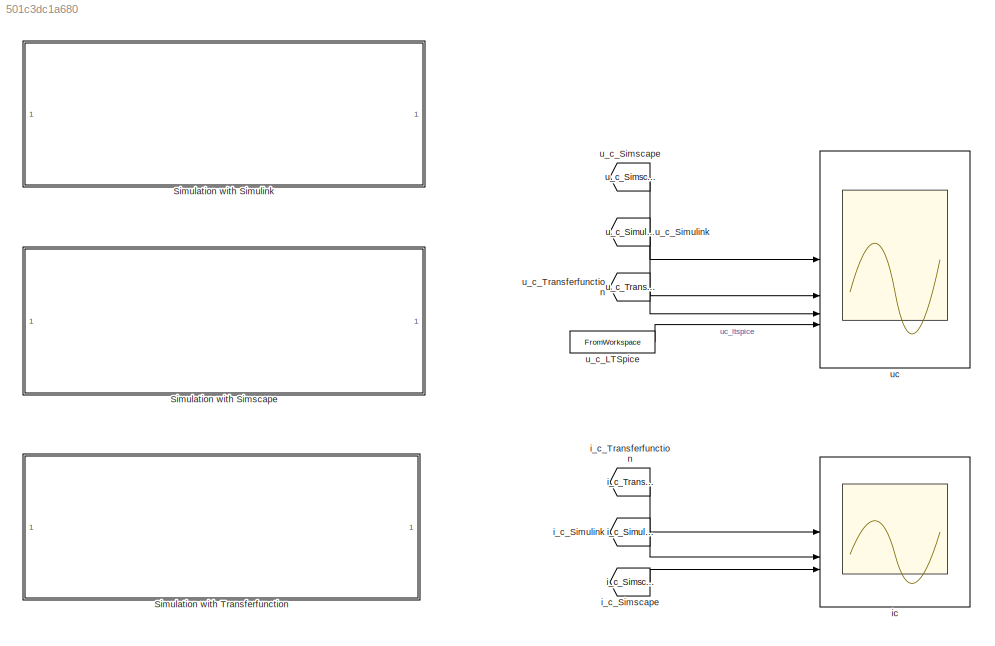
MODEL slx_501c3dc1a680
KIND model
CONFIG AbsTol = auto
CONFIG EnableMultiTasking = off
CONFIG FixedStep = auto
CONFIG MaxStep = auto
CONFIG MinStep = auto
CONFIG RelTol = 1e-3
CONFIG SampleTimeConstraint = Unconstrained
CONFIG SolverName = ode23t
CONFIG StartTime = 0.0
CONFIG StopTime = Sim.t_end
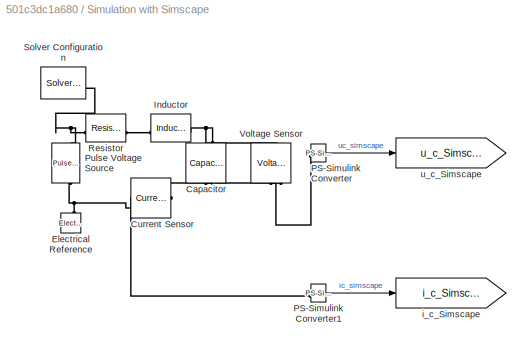
BLOCK [SubSystem] Simulation with Simscape
BLOCK [Reference] Simulation with Simscape/Capacitor  REF=ee_lib/Passive/Capacitor
  NameLocation = left
  SourceBlock = ee_lib/Passive/Capacitor
  SourceType = Capacitor
BLOCK [Reference] Simulation with Simscape/Current Sensor  REF=fl_lib/Electrical/Electrical Sensors/Current Sensor
  LibrarySourceBlock = ee_lib/Sensors &\nTransducers/Current Sensor
  NameLocation = top
  SourceBlock = fl_lib/Electrical/Electrical Sensors/Current Sensor
  SourceType = Current Sensor
BLOCK [Reference] Simulation with Simscape/Electrical Reference  REF=fl_lib/Electrical/Electrical Elements/Electrical Reference
  LibrarySourceBlock = ee_lib/Connectors &\nReferences/Electrical Reference
  NameLocation = right
  SourceBlock = fl_lib/Electrical/Electrical Elements/Electrical Reference
  SourceType = Electrical Reference
BLOCK [Reference] Simulation with Simscape/Inductor  REF=ee_lib/Passive/Inductor
  SourceBlock = ee_lib/Passive/Inductor
  SourceType = Inductor
BLOCK [Reference] Simulation with Simscape/PS-Simulink Converter  REF=nesl_utility/PS-Simulink
Converter
  SourceBlock = nesl_utility/PS-Simulink\nConverter
  SourceType = PS-Simulink\nConverter
BLOCK [Reference] Simulation with Simscape/PS-Simulink Converter1  REF=nesl_utility/PS-Simulink
Converter
  SourceBlock = nesl_utility/PS-Simulink\nConverter
  SourceType = PS-Simulink\nConverter
BLOCK [Reference] Simulation with Simscape/Pulse Voltage Source  REF=ee_lib/Additional
Components/SPICE Sources/Pulse Voltage Source
  LibrarySourceBlock = ee_lib/Sources/Pulse Voltage Source
  NameLocation = right
  SourceBlock = ee_lib/Additional\nComponents/SPICE Sources/Pulse Voltage Source
  SourceType = Pulse Voltage Source
BLOCK [Reference] Simulation with Simscape/Resistor  REF=ee_lib/Passive/Resistor
  SourceBlock = ee_lib/Passive/Resistor
  SourceType = Resistor
BLOCK [Reference] Simulation with Simscape/Solver Configuration  REF=nesl_utility/Solver
Configuration
  SourceBlock = nesl_utility/Solver\nConfiguration
  SourceType = Solver\nConfiguration
BLOCK [Reference] Simulation with Simscape/Voltage Sensor  REF=fl_lib/Electrical/Electrical Sensors/Voltage Sensor
  NameLocation = right
  SourceBlock = fl_lib/Electrical/Electrical Sensors/Voltage Sensor
  SourceType = Voltage Sensor
BLOCK [Goto] Simulation with Simscape/i_c_Simscape
  GotoTag = i_c_Simscape
  TagVisibility = global
BLOCK [Goto] Simulation with Simscape/u_c_Simscape
  GotoTag = u_c_Simscape
  TagVisibility = global
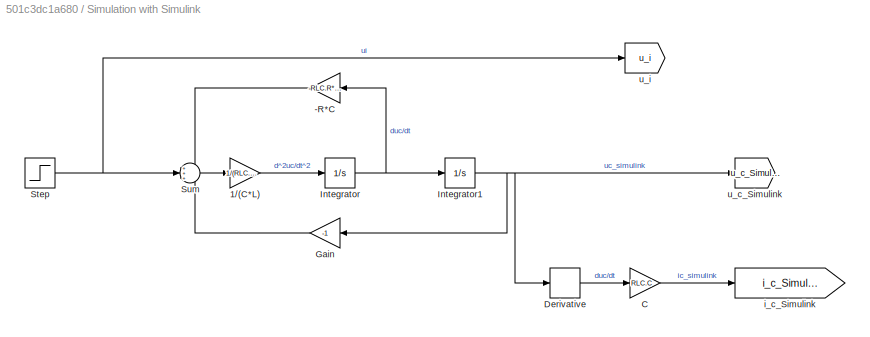
BLOCK [SubSystem] Simulation with Simulink
BLOCK [Gain] Simulation with Simulink/-R*C
  Gain = -RLC.R*RLC.C
BLOCK [Gain] Simulation with Simulink/1//(C*L)
  Gain = 1/(RLC.L*RLC.C)
BLOCK [Gain] Simulation with Simulink/C
  Gain = RLC.C
BLOCK [Derivative] Simulation with Simulink/Derivative
BLOCK [Gain] Simulation with Simulink/Gain
  Gain = -1
BLOCK [Integrator] Simulation with Simulink/Integrator
BLOCK [Integrator] Simulation with Simulink/Integrator1
BLOCK [Step] Simulation with Simulink/Step
  After = RLC.u_i
  SampleTime = 0
  Time = Sim.t_step
BLOCK [Sum] Simulation with Simulink/Sum
  Inputs = +++
BLOCK [Goto] Simulation with Simulink/i_c_Simulink
  GotoTag = i_c_Simulink
  TagVisibility = global
BLOCK [Goto] Simulation with Simulink/u_c_Simulink
  GotoTag = u_c_Simulink
  TagVisibility = global
BLOCK [Goto] Simulation with Simulink/u_i
  GotoTag = u_i
  TagVisibility = global
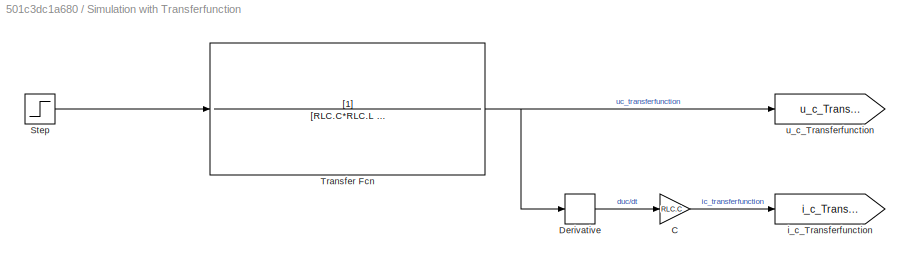
BLOCK [SubSystem] Simulation with Transferfunction
BLOCK [Gain] Simulation with Transferfunction/C
  Gain = RLC.C
BLOCK [Derivative] Simulation with Transferfunction/Derivative
BLOCK [Step] Simulation with Transferfunction/Step
  After = RLC.u_i
  SampleTime = 0
  Time = Sim.t_step
BLOCK [TransferFcn] Simulation with Transferfunction/Transfer Fcn
  Denominator = [RLC.C*RLC.L RLC.R*RLC.C 1]
BLOCK [Goto] Simulation with Transferfunction/i_c_Transferfunction
  GotoTag = i_c_Transferfunction
  TagVisibility = global
BLOCK [Goto] Simulation with Transferfunction/u_c_Transferfunction
  GotoTag = u_c_Transferfunction
  TagVisibility = global
BLOCK [From] i_c_Simscape
  GotoTag = i_c_Simscape
  TagVisibility = global
BLOCK [From] i_c_Simulink
  GotoTag = i_c_Simulink
  TagVisibility = global
BLOCK [From] i_c_Transferfunction
  GotoTag = i_c_Transferfunction
  TagVisibility = global
BLOCK [Scope] ic
  ActiveDisplayYMaximum = 6.0267917263136382E-5
  ActiveDisplayYMinimum = -6.6964454025300318E-6
  DataLoggingVariableName = ScopeData1
  Floating = off
  GraphicalSettings = {"Style":{"BackgroundColor":[0.12941176470588237,0.12941176470588237,0.12941176470588237],"AxesColor":[0.07058823529411765,0.07058823529411765,0.07058823529411765],"LabelsColor":[0.8509803921568627,0.8509803921568627,0.8509803921568627],"PreserveColors":false,"Visible":[false,true,true],"LineStyle":["-","-","-"],"LineWidth":[1.5,1.5,1.5],"BarWidth":[0.9,0.9,0.9],"LineColor":["auto","auto","auto"],...<+2316ch>
  MultipleDisplayCache = [{"MaxYLimMag":6.0267917263136382E-5,"MaxYLimReal":6.0267917263136382E-5,"MinYLimMag":0,"MinYLimReal":-6.6964454025300318E-6,"PlotAsMagnitudePhase":false,"ShowGrid":true,"ShowLegend":true,"Title":"%<SignalLabel>","YLabel":"i in A"}]
  NumInputPorts = 3
  ScopeFrameLocation = window
  ShowLegend = on
  ShowTimeAxisLabel = on
  WasSavedAsWebScope = on
  WindowPosition = [1.000000,1.000000,1500.000000,916.000000,]
  YLabel = i in A
BLOCK [FromWorkspace] u_c_LTSpice
  SampleTime = .01
  VariableName = LTSpice_uc
BLOCK [From] u_c_Simscape
  GotoTag = u_c_Simscape
  TagVisibility = global
BLOCK [From] u_c_Simulink
  GotoTag = u_c_Simulink
  TagVisibility = global
BLOCK [From] u_c_Transferfunction
  GotoTag = u_c_Transferfunction
  TagVisibility = global
BLOCK [Scope] uc
  ActiveDisplayYMaximum = 1
  ActiveDisplayYMinimum = -1
  Floating = off
  GraphicalSettings = {"Style":{"BackgroundColor":[0.12941176470588237,0.12941176470588237,0.12941176470588237],"AxesColor":[0.07058823529411765,0.07058823529411765,0.07058823529411765],"LabelsColor":[0.8509803921568627,0.8509803921568627,0.8509803921568627],"PreserveColors":false,"Visible":[true,true,true,true],"LineStyle":["-","-","-","-"],"LineWidth":[1.5,1.5,1.5,1.5],"BarWidth":[0.9,0.9,0.9,0.9],"LineColor":["auto"...<+2415ch>
  MultipleDisplayCache = [{"MaxYLimMag":1,"MaxYLimReal":1,"MinYLimMag":0,"MinYLimReal":-1,"PlotAsMagnitudePhase":false,"ShowGrid":true,"ShowLegend":true,"Title":"%<SignalLabel>","YLabel":"u in V"}]
  NumInputPorts = 4
  ScopeFrameLocation = window
  ShowLegend = on
  ShowTimeAxisLabel = on
  WasSavedAsWebScope = on
  WindowPosition = [1.000000,1.000000,1500.000000,916.000000,]
  YLabel = u in V
LINE Simulation with Simscape/PS-Simulink Converter1:1 -> Simulation with Simscape/i_c_Simscape:1
LINE Simulation with Simscape/PS-Simulink Converter:1 -> Simulation with Simscape/u_c_Simscape:1
LINE Simulation with Simulink/-R*C:1 -> Simulation with Simulink/Sum:1
LINE Simulation with Simulink/1//(C*L):1 -> Simulation with Simulink/Integrator:1
LINE Simulation with Simulink/C:1 -> Simulation with Simulink/i_c_Simulink:1
LINE Simulation with Simulink/Derivative:1 -> Simulation with Simulink/C:1
LINE Simulation with Simulink/Gain:1 -> Simulation with Simulink/Sum:3
NET Simulation with Simulink/Integrator1:1 -> Simulation with Simulink/Derivative:1, Simulation with Simulink/Gain:1, Simulation with Simulink/u_c_Simulink:1
NET Simulation with Simulink/Integrator:1 -> Simulation with Simulink/-R*C:1, Simulation with Simulink/Integrator1:1
NET Simulation with Simulink/Step:1 -> Simulation with Simulink/Sum:2, Simulation with Simulink/u_i:1
LINE Simulation with Simulink/Sum:1 -> Simulation with Simulink/1//(C*L):1
LINE Simulation with Transferfunction/C:1 -> Simulation with Transferfunction/i_c_Transferfunction:1
LINE Simulation with Transferfunction/Derivative:1 -> Simulation with Transferfunction/C:1
LINE Simulation with Transferfunction/Step:1 -> Simulation with Transferfunction/Transfer Fcn:1
NET Simulation with Transferfunction/Transfer Fcn:1 -> Simulation with Transferfunction/Derivative:1, Simulation with Transferfunction/u_c_Transferfunction:1
LINE i_c_Simscape:1 -> ic:3
LINE i_c_Simulink:1 -> ic:2
LINE i_c_Transferfunction:1 -> ic:1
LINE u_c_LTSpice:1 -> uc:4
LINE u_c_Simscape:1 -> uc:1
LINE u_c_Simulink:1 -> uc:2
LINE u_c_Transferfunction:1 -> uc:3
PNET net1: Simulation with Simscape/Capacitor:LConn1 -- Simulation with Simscape/Inductor:RConn1 -- Simulation with Simscape/Voltage Sensor:LConn1
PNET net2: Simulation with Simscape/Capacitor:RConn1 -- Simulation with Simscape/Current Sensor:LConn1 -- Simulation with Simscape/Voltage Sensor:RConn2
PLINE Simulation with Simscape/Current Sensor:RConn1 -- Simulation with Simscape/PS-Simulink Converter1:LConn1
PNET net3: Simulation with Simscape/Current Sensor:RConn2 -- Simulation with Simscape/Electrical Reference:LConn1 -- Simulation with Simscape/Pulse Voltage Source:RConn1
PLINE Simulation with Simscape/Inductor:LConn1 -- Simulation with Simscape/Resistor:RConn1
PLINE Simulation with Simscape/PS-Simulink Converter:LConn1 -- Simulation with Simscape/Voltage Sensor:RConn1
PNET net4: Simulation with Simscape/Pulse Voltage Source:LConn1 -- Simulation with Simscape/Resistor:LConn1 -- Simulation with Simscape/Solver Configuration:RConn1
note: NET lines group one-source signal fan-out (src -> all destinations, sorted); 1:1 wires keep LINE; PNET lines group multi-terminal physical nets as a canonical sorted terminal list (undirected conserving connections); 2-terminal nets keep the pairwise PLINE form
